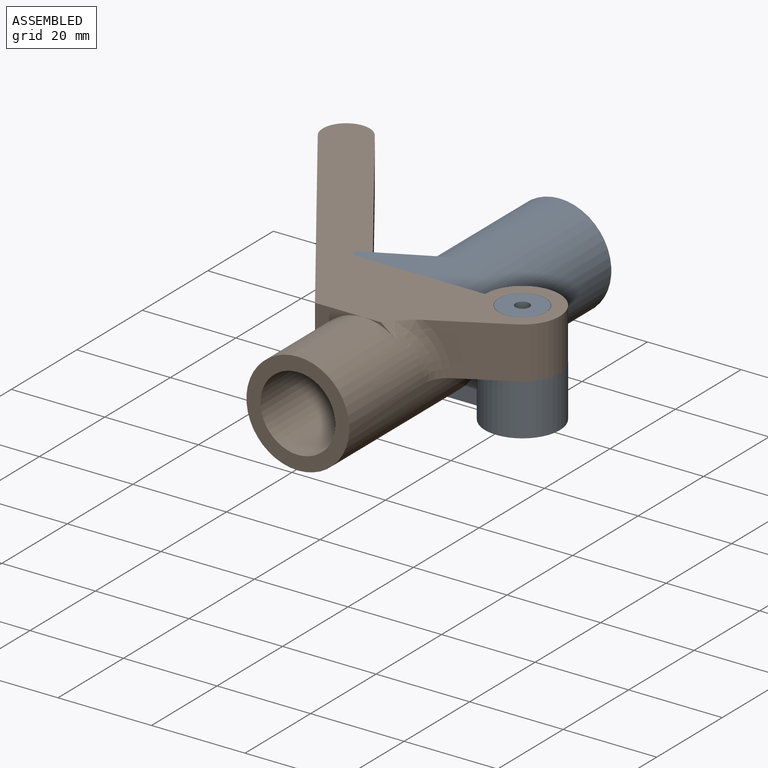
[diagram: assembled view]
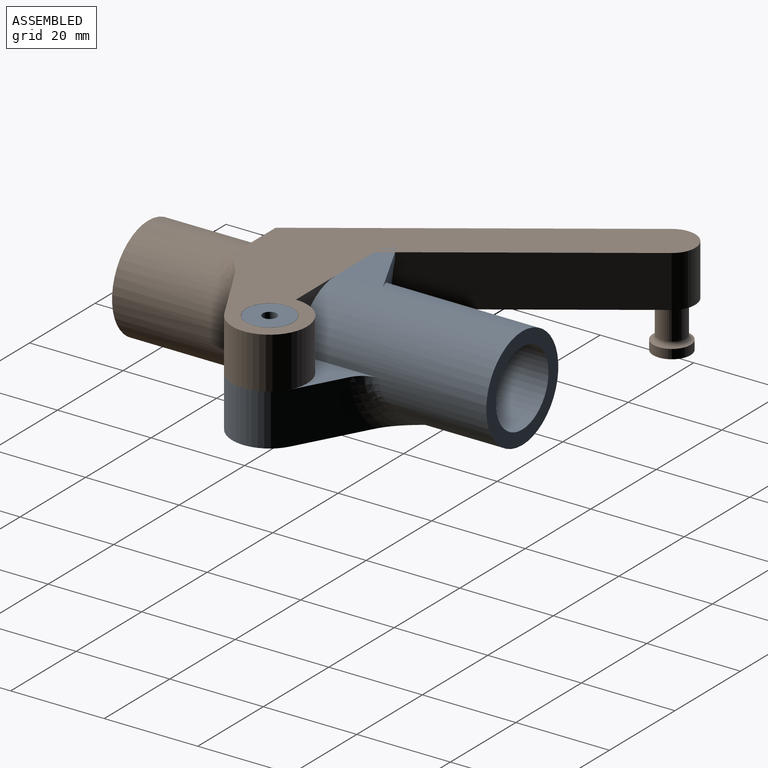
[diagram: assembled view, second angle]
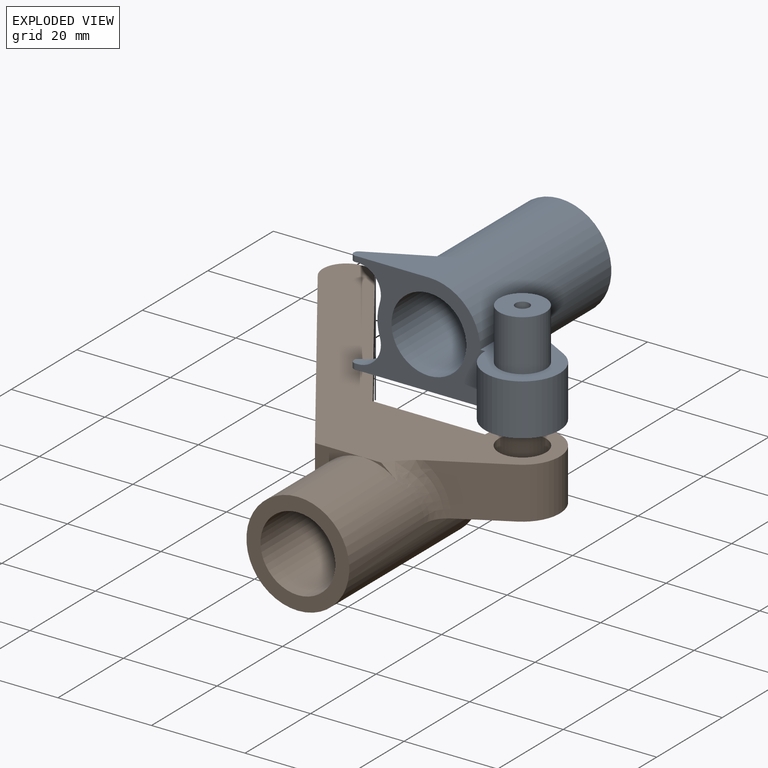
[diagram: exploded view]
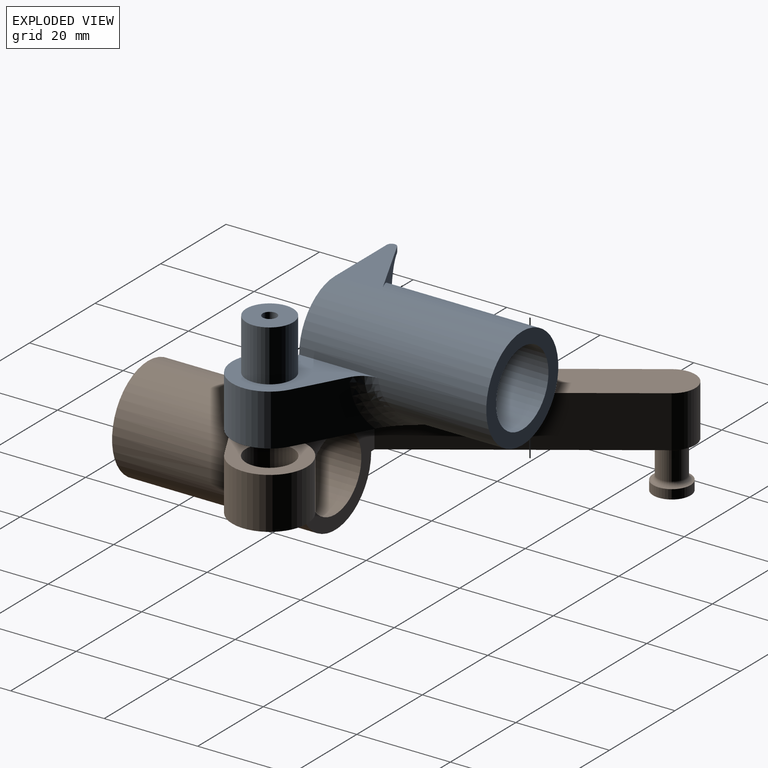
[diagram: exploded view, second angle]
ASSEMBLY  parts=2 mates=2
PART A: 22 faces, bbox 46.7x49.9x28.9 mm
  f0: cylinder r=11mm len=40mm, axis (0,-1,0), area 2190.5mm2, adj f2,f3,f4,f5,f8,f13,f15,f17
  f1: cylinder r=8mm len=40mm, axis (0,-1,0), area 2010.6mm2, adj f2,f3
  f2: plane 22x22mm, normal (0,1,0), area 179.1mm2, adj f0,f1
  f3: plane 27.76x22mm, normal (0,-1,0), area 279.7mm2, adj f0,f1,f4,f5,f7,f14,f15,f16
  f4: plane 25.03x17.05mm, normal (0,0,1), area 179.2mm2, adj f0,f3,f6,f7,f8,f9
  f5: plane 46.71x35.64mm, normal (0,0,-1), area 558.6mm2, adj f0,f3,f6,f7,f8,f18,f20
  f6: plane 14.6x11mm, normal (0.48,0.88,0), area 145.1mm2, adj f4,f5,f7,f8
  f7: cylinder r=8mm len=16mm, axis (0,0,1), area 370.8mm2, adj f3,f4,f5,f6
  f8: bspline ~16x16mm, area 96.2mm2, adj f0,f4,f5,f6
  f9: cylinder r=5mm len=11mm, axis (0,0,-1), area 345.6mm2, adj f4,f10
  f10: plane 10x10mm, normal (0,0,1), area 71.5mm2, adj f9,f12
  f11: cone r=0mm half-angle=59deg, axis (0,0,1), area 8.2mm2, adj f12
  f12: cylinder r=1.5mm len=15mm, axis (0,0,1), area 141.4mm2, adj f10,f11
  f13: plane 17.88x9.77mm, normal (-0.45,0.89,0), area 36.2mm2, adj f0,f14,f15,f16,f17
  f14: plane 2.37x1.5mm, normal (0,0,-1), area 2.7mm2, adj f3,f13,f16,f17
  f15: plane 16.76x10mm, normal (0,0,1), area 97.1mm2, adj f0,f3,f13,f16
  f16: cylinder r=1mm len=1.89mm, axis (0,0,-1), area 3.2mm2, adj f3,f13,f14,f15
  f17: cylinder r=5mm len=6.5mm, axis (0,-1,0), area 33.4mm2, adj f0,f3,f13,f14
  f18: plane 17.88x9.77mm, normal (-0.45,0.89,0), area 36.2mm2, adj f0,f5,f19,f20,f21
  f19: plane 2.37x1.5mm, normal (0,0,1), area 2.7mm2, adj f3,f18,f20,f21
  f20: cylinder r=1mm len=1.89mm, axis (0,0,-1), area 3.2mm2, adj f3,f5,f18,f19
  f21: cylinder r=5mm len=6.5mm, axis (0,-1,0), area 33.4mm2, adj f0,f3,f18,f19
PART B: 21 faces, bbox 79.6x85.9x26.4 mm
  f0: plane 79.48x65.81mm, normal (0,0,-1), area 1241.1mm2, adj f1,f2,f6,f8,f9,f10,f12,f13
  f1: bspline ~14.59x9.92mm, area 77.7mm2, adj f0,f4,f7,f8,f15
  f2: plane 57.63x39.91mm, normal (-0.82,0.57,0), area 761mm2, adj f0,f4,f11,f13,f16
  f3: cylinder r=8mm len=40mm, axis (0,-1,0), area 2010.6mm2, adj f5,f6
  f4: cylinder r=11mm len=40mm, axis (0,-1,0), area 2089.5mm2, adj f1,f2,f5,f6,f7,f11,f15,f16
  f5: plane 22x22mm, normal (0,1,0), area 179.1mm2, adj f3,f4
  f6: plane 24x22mm, normal (0,-1,0), area 253mm2, adj f0,f3,f4,f7,f9,f11,f12
  f7: plane 25.03x17.05mm, normal (0,0,1), area 177.6mm2, adj f1,f4,f6,f8,f9,f10
  f8: plane 14.6x11mm, normal (0.48,0.88,0), area 145.1mm2, adj f0,f1,f7,f9
  f9: cylinder r=8mm len=16mm, axis (0,0,1), area 370.8mm2, adj f0,f6,f7,f8
  f10: cylinder r=5.05mm len=11mm, axis (0,0,1), area 349mm2, adj f0,f7
  f11: plane 64.06x39.67mm, normal (0,0,1), area 600.3mm2, adj f2,f4,f6,f12,f13,f19
  f12: plane 42.84x29.56mm, normal (0.82,-0.57,0), area 572.5mm2, adj f0,f6,f11,f13
  f13: cylinder r=5mm len=11mm, axis (0,0,1), area 172.8mm2, adj f0,f2,f11,f12
  f14: cylinder r=3mm len=6mm, axis (0,0,-1), area 113.1mm2, adj f19,f20
  f15: plane 7.37x2.85mm, normal (0,1,0), area 1.6mm2, adj f0,f1,f4
  f16: plane 10.35x7.27mm, normal (0,1,0), area 20.4mm2, adj f0,f2,f4
  f17: cylinder r=4mm len=8mm, axis (0,0,-1), area 50.3mm2, adj f18,f20
  f18: plane 8x8mm, normal (0,0,1), area 50.3mm2, adj f17
  f19: torus R=4mm, axis (0,0,1), area 33.2mm2, adj f11,f14
  f20: torus R=4mm, axis (0,0,1), area 33.2mm2, adj f14,f17
PLACE A t=(-4.08,-9.48,5.95)mm fixed
PLACE B rot(axis=(1,0,0),180deg) t=(-4.08,-9.48,5.95)mm
MATE slider A.f9 <-> B.f10  axis (0,0,1) through (15.92,-9.48,16.95)mm
MATE planar A.f4 <-> B.f7  axis (0,0,1) through (14.02,-6.84,5.95)mm
